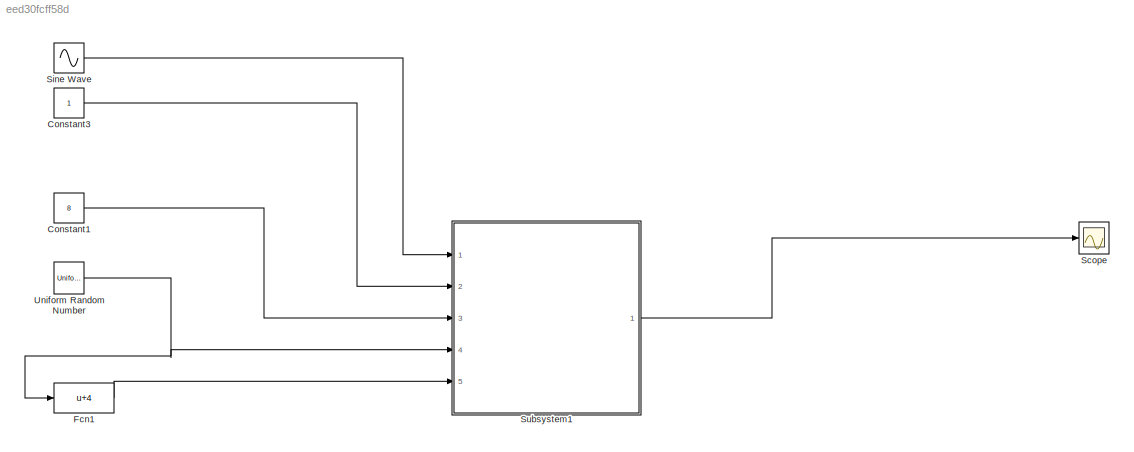
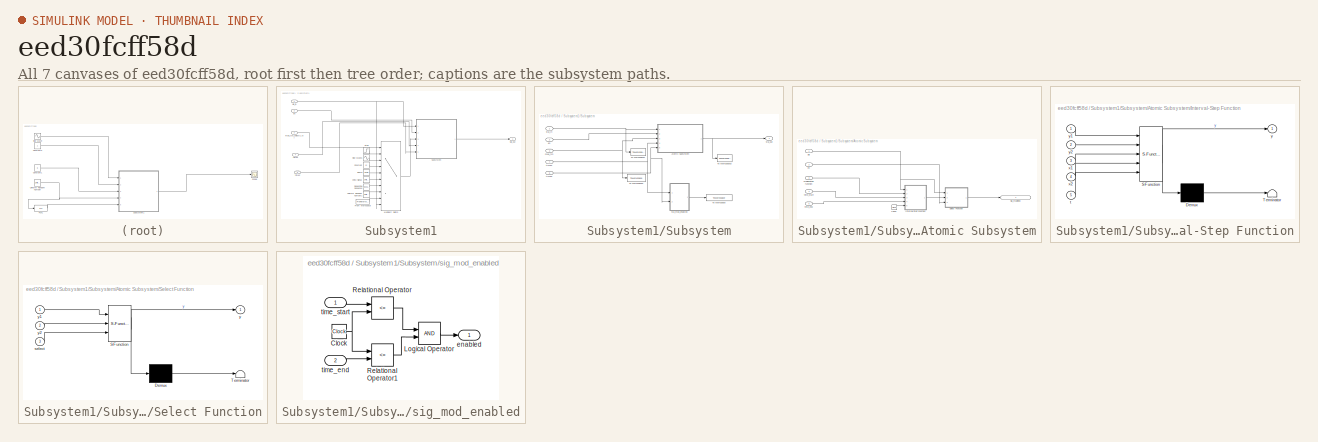
[diagram: thumbnail index - all 7 canvases of the model, root first then tree order]
MODEL slx_eed30fcff58d
KIND model
CONFIG AbsTol = auto
CONFIG EnableMultiTasking = off
CONFIG FixedStep = auto
CONFIG MaxStep = auto
CONFIG MinStep = auto
CONFIG RelTol = 1e-3
CONFIG SampleTimeConstraint = Unconstrained
CONFIG Solver = VariableStepAuto
CONFIG SolverName = VariableStepAuto
CONFIG StartTime = 0.0
CONFIG StopTime = 10.0
BLOCK [Constant] Constant1
  Value = 8
BLOCK [Constant] Constant3
BLOCK [Fcn] Fcn1
  Expr = u+4
BLOCK [Scope] Scope
  Floating = off
  NumInputPorts = 1
  Ports = [1]
  ScopeSpecificationString = Simulink.scopes.TimeScopeBlockCfg('CurrentConfiguration', extmgr.ConfigurationSet(extmgr.Configuration('Core','General UI',true),extmgr.Configuration('Core','Source UI',true),extmgr.Configuration('Sources','WiredSimulink',true),extmgr.Configuration('Visuals','Time Domain',true,'SerializedDisplays',{struct('MinYLimReal','-10.60191','MaxYLimReal','85.48204','YLabelReal','','MinYLimMag','0.00000','Ma...<+1391ch>
BLOCK [Sin] Sine Wave
  Ports = [0, 1]
  SampleTime = 0
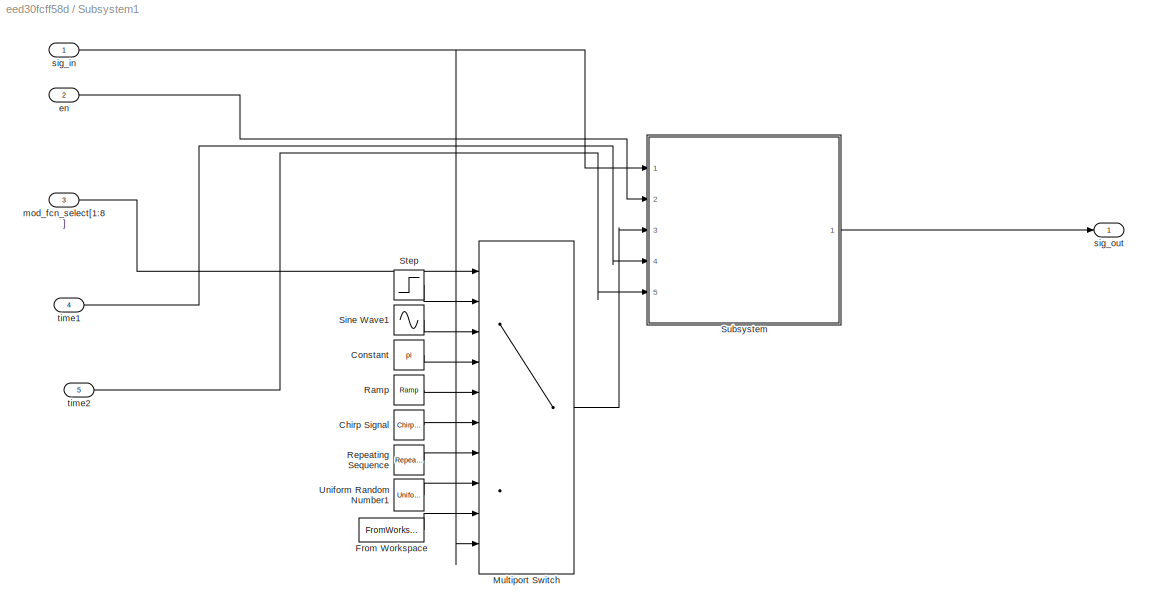
BLOCK [SubSystem] Subsystem1
  Ports = [5, 1]
  RequestExecContextInheritance = off
BLOCK [Reference] Subsystem1/Chirp Signal  REF=simulink/Sources/Chirp Signal
  Ports = [0, 1]
  SourceBlock = simulink/Sources/Chirp Signal
  SourceProductBaseCode = SL
  SourceProductName = Simulink
  SourceType = chirp
BLOCK [Constant] Subsystem1/Constant
  Value = pi
BLOCK [FromWorkspace] Subsystem1/From Workspace
  VariableName = simin
  ZeroCross = on
BLOCK [MultiPortSwitch] Subsystem1/Multiport Switch
  DataPortForDefault = Additional data port
  InputSameDT = off
  Inputs = 8
  Ports = [10, 1]
  SaturateOnIntegerOverflow = off
BLOCK [Reference] Subsystem1/Ramp  REF=simulink/Sources/Ramp
  Ports = [0, 1]
  SourceBlock = simulink/Sources/Ramp
  SourceProductBaseCode = SL
  SourceProductName = Simulink
  SourceType = Ramp
BLOCK [Reference] Subsystem1/Repeating Sequence  REF=simulink/Sources/Repeating
Sequence
  Ports = [0, 1]
  SourceBlock = simulink/Sources/Repeating\nSequence
  SourceProductBaseCode = SL
  SourceProductName = Simulink
  SourceType = Repeating table
BLOCK [Sin] Subsystem1/Sine Wave1
  Frequency = 1000
  Ports = [0, 1]
  SampleTime = 0
BLOCK [Step] Subsystem1/Step
  SampleTime = 0
  Time = 5
BLOCK [SubSystem] Subsystem1/Subsystem
  Ports = [5, 1]
  RequestExecContextInheritance = off
BLOCK [SubSystem] Subsystem1/Subsystem/Atomic Subsystem
  Ports = [5, 1]
  RequestExecContextInheritance = off
  TreatAsAtomicUnit = on
BLOCK [Clock] Subsystem1/Subsystem/Atomic Subsystem/Clock
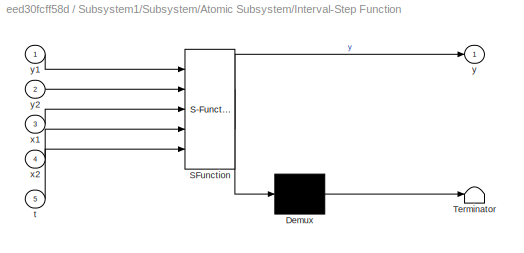
BLOCK [SubSystem] Subsystem1/Subsystem/Atomic Subsystem/Interval-Step Function
  ErrorFcn = Stateflow.Translate.translate
  PermitHierarchicalResolution = ExplicitOnly
  Ports = [5, 1]
  RequestExecContextInheritance = off
  SFBlockType = MATLAB Function
  TreatAsAtomicUnit = on
BLOCK [Demux] Subsystem1/Subsystem/Atomic Subsystem/Interval-Step Function/ Demux 
  Outputs = 1
  Ports = [1, 1]
BLOCK [S-Function] Subsystem1/Subsystem/Atomic Subsystem/Interval-Step Function/ SFunction 
  EnableBusSupport = on
  FunctionName = sf_sfun
  PortCounts = [5 2]
  Ports = [5, 2]
  SFcnIsStateOwnerBlock = off
  SFunctionDeploymentMode = off
  Tag = Stateflow S-Function sig_mod_block_4 1
BLOCK [Terminator] Subsystem1/Subsystem/Atomic Subsystem/Interval-Step Function/ Terminator 
BLOCK [Inport] Subsystem1/Subsystem/Atomic Subsystem/Interval-Step Function/t
  IconDisplay = Port number
  Port = 5
BLOCK [Inport] Subsystem1/Subsystem/Atomic Subsystem/Interval-Step Function/x1
  IconDisplay = Port number
  Port = 3
BLOCK [Inport] Subsystem1/Subsystem/Atomic Subsystem/Interval-Step Function/x2
  IconDisplay = Port number
  Port = 4
BLOCK [Outport] Subsystem1/Subsystem/Atomic Subsystem/Interval-Step Function/y
  IconDisplay = Port number
BLOCK [Inport] Subsystem1/Subsystem/Atomic Subsystem/Interval-Step Function/y1
  IconDisplay = Port number
BLOCK [Inport] Subsystem1/Subsystem/Atomic Subsystem/Interval-Step Function/y2
  IconDisplay = Port number
  Port = 2
BLOCK [SubSystem] Subsystem1/Subsystem/Atomic Subsystem/Select Function
  ErrorFcn = Stateflow.Translate.translate
  PermitHierarchicalResolution = ExplicitOnly
  Ports = [3, 1]
  RequestExecContextInheritance = off
  SFBlockType = MATLAB Function
  TreatAsAtomicUnit = on
BLOCK [Demux] Subsystem1/Subsystem/Atomic Subsystem/Select Function/ Demux 
  Outputs = 1
  Ports = [1, 1]
BLOCK [S-Function] Subsystem1/Subsystem/Atomic Subsystem/Select Function/ SFunction 
  EnableBusSupport = on
  FunctionName = sf_sfun
  PortCounts = [3 2]
  Ports = [3, 2]
  SFcnIsStateOwnerBlock = off
  SFunctionDeploymentMode = off
  Tag = Stateflow S-Function sig_mod_block_4 4
BLOCK [Terminator] Subsystem1/Subsystem/Atomic Subsystem/Select Function/ Terminator 
BLOCK [Inport] Subsystem1/Subsystem/Atomic Subsystem/Select Function/select
  IconDisplay = Port number
  Port = 3
BLOCK [Outport] Subsystem1/Subsystem/Atomic Subsystem/Select Function/y
  IconDisplay = Port number
BLOCK [Inport] Subsystem1/Subsystem/Atomic Subsystem/Select Function/y1
  IconDisplay = Port number
BLOCK [Inport] Subsystem1/Subsystem/Atomic Subsystem/Select Function/y2
  IconDisplay = Port number
  Port = 2
BLOCK [Inport] Subsystem1/Subsystem/Atomic Subsystem/en
  IconDisplay = Port number
  Port = 2
BLOCK [Inport] Subsystem1/Subsystem/Atomic Subsystem/modification function
  IconDisplay = Port number
  Port = 3
BLOCK [Inport] Subsystem1/Subsystem/Atomic Subsystem/sig
  IconDisplay = Port number
BLOCK [Outport] Subsystem1/Subsystem/Atomic Subsystem/sig_modified
  IconDisplay = Port number
BLOCK [Inport] Subsystem1/Subsystem/Atomic Subsystem/time_end
  IconDisplay = Port number
  Port = 5
BLOCK [Inport] Subsystem1/Subsystem/Atomic Subsystem/time_start
  IconDisplay = Port number
  Port = 4
BLOCK [ToWorkspace] Subsystem1/Subsystem/To Workspace
  FixptAsFi = on
  MaxDataPoints = inf
  Ports = [1]
  SampleTime = -1
  SaveFormat = Timeseries
  VariableName = sig_mod_enabled
BLOCK [ToWorkspace] Subsystem1/Subsystem/To Workspace1
  FixptAsFi = on
  MaxDataPoints = inf
  Ports = [1]
  SampleTime = -1
  SaveFormat = Timeseries
  VariableName = sig_in
BLOCK [ToWorkspace] Subsystem1/Subsystem/To Workspace2
  FixptAsFi = on
  MaxDataPoints = inf
  Ports = [1]
  SampleTime = -1
  SaveFormat = Timeseries
  VariableName = mod_fcn
BLOCK [ToWorkspace] Subsystem1/Subsystem/To Workspace3
  FixptAsFi = on
  MaxDataPoints = inf
  Ports = [1]
  SampleTime = -1
  SaveFormat = Timeseries
  VariableName = sig_out
BLOCK [Inport] Subsystem1/Subsystem/en
  IconDisplay = Port number
  Port = 2
BLOCK [Inport] Subsystem1/Subsystem/mod_fcn
  IconDisplay = Port number
  Port = 3
BLOCK [Inport] Subsystem1/Subsystem/sig_in
  IconDisplay = Port number
BLOCK [SubSystem] Subsystem1/Subsystem/sig_mod_enabled
  Ports = [2, 1]
  RequestExecContextInheritance = off
BLOCK [Clock] Subsystem1/Subsystem/sig_mod_enabled/Clock
BLOCK [Logic] Subsystem1/Subsystem/sig_mod_enabled/Logical Operator
  AllPortsSameDT = off
  OutDataTypeStr = boolean
  Ports = [2, 1]
BLOCK [RelationalOperator] Subsystem1/Subsystem/sig_mod_enabled/Relational Operator
  InputSameDT = off
  Operator = <=
  OutDataTypeStr = boolean
  Ports = [2, 1]
  RndMeth = Simplest
BLOCK [RelationalOperator] Subsystem1/Subsystem/sig_mod_enabled/Relational Operator1
  InputSameDT = off
  Operator = <=
  OutDataTypeStr = boolean
  Ports = [2, 1]
  RndMeth = Simplest
BLOCK [Outport] Subsystem1/Subsystem/sig_mod_enabled/enabled
  IconDisplay = Port number
BLOCK [Inport] Subsystem1/Subsystem/sig_mod_enabled/time_end
  IconDisplay = Port number
  Port = 2
BLOCK [Inport] Subsystem1/Subsystem/sig_mod_enabled/time_start
  IconDisplay = Port number
BLOCK [Outport] Subsystem1/Subsystem/sig_out
  IconDisplay = Port number
BLOCK [Inport] Subsystem1/Subsystem/time1
  IconDisplay = Port number
  Port = 4
BLOCK [Inport] Subsystem1/Subsystem/time2
  IconDisplay = Port number
  Port = 5
BLOCK [UniformRandomNumber] Subsystem1/Uniform Random Number1
  Maximum = 10
  Minimum = -10
  SampleTime = 0.1
  Seed = randi(intmax)
BLOCK [Inport] Subsystem1/en
  IconDisplay = Port number
  Port = 2
BLOCK [Inport] Subsystem1/mod_fcn_select[1:8]
  IconDisplay = Port number
  Port = 3
BLOCK [Inport] Subsystem1/sig_in
  IconDisplay = Port number
BLOCK [Outport] Subsystem1/sig_out
  IconDisplay = Port number
BLOCK [Inport] Subsystem1/time1
  IconDisplay = Port number
  Port = 4
BLOCK [Inport] Subsystem1/time2
  IconDisplay = Port number
  Port = 5
BLOCK [UniformRandomNumber] Uniform Random Number
  Maximum = 6
  Minimum = 0
  SampleTime = 0.1
  Seed = randi(intmax)
LINE Constant1:1 -> Subsystem1:3
LINE Constant3:1 -> Subsystem1:2
LINE Fcn1:1 -> Subsystem1:5
LINE Sine Wave:1 -> Subsystem1:1
LINE Subsystem1/Chirp Signal:1 -> Subsystem1/Multiport Switch:6
LINE Subsystem1/Constant:1 -> Subsystem1/Multiport Switch:4
LINE Subsystem1/From Workspace:1 -> Subsystem1/Multiport Switch:9
LINE Subsystem1/Multiport Switch:1 -> Subsystem1/Subsystem:3
LINE Subsystem1/Ramp:1 -> Subsystem1/Multiport Switch:5
LINE Subsystem1/Repeating Sequence:1 -> Subsystem1/Multiport Switch:7
LINE Subsystem1/Sine Wave1:1 -> Subsystem1/Multiport Switch:3
LINE Subsystem1/Step:1 -> Subsystem1/Multiport Switch:2
LINE Subsystem1/Subsystem/Atomic Subsystem/Clock:1 -> Subsystem1/Subsystem/Atomic Subsystem/Interval-Step Function:5
LINE Subsystem1/Subsystem/Atomic Subsystem/Interval-Step Function:1 -> Subsystem1/Subsystem/Atomic Subsystem/Select Function:2
LINE Subsystem1/Subsystem/Atomic Subsystem/Select Function:1 -> Subsystem1/Subsystem/Atomic Subsystem/sig_modified:1
LINE Subsystem1/Subsystem/Atomic Subsystem/en:1 -> Subsystem1/Subsystem/Atomic Subsystem/Select Function:3
LINE Subsystem1/Subsystem/Atomic Subsystem/modification function:1 -> Subsystem1/Subsystem/Atomic Subsystem/Interval-Step Function:2
NET Subsystem1/Subsystem/Atomic Subsystem/sig:1 -> Subsystem1/Subsystem/Atomic Subsystem/Interval-Step Function:1, Subsystem1/Subsystem/Atomic Subsystem/Select Function:1
LINE Subsystem1/Subsystem/Atomic Subsystem/time_end:1 -> Subsystem1/Subsystem/Atomic Subsystem/Interval-Step Function:4
LINE Subsystem1/Subsystem/Atomic Subsystem/time_start:1 -> Subsystem1/Subsystem/Atomic Subsystem/Interval-Step Function:3
NET Subsystem1/Subsystem/Atomic Subsystem:1 -> Subsystem1/Subsystem/To Workspace3:1, Subsystem1/Subsystem/sig_out:1
LINE Subsystem1/Subsystem/en:1 -> Subsystem1/Subsystem/Atomic Subsystem:2
NET Subsystem1/Subsystem/mod_fcn:1 -> Subsystem1/Subsystem/Atomic Subsystem:3, Subsystem1/Subsystem/To Workspace2:1
NET Subsystem1/Subsystem/sig_in:1 -> Subsystem1/Subsystem/Atomic Subsystem:1, Subsystem1/Subsystem/To Workspace1:1
NET Subsystem1/Subsystem/sig_mod_enabled/Clock:1 -> Subsystem1/Subsystem/sig_mod_enabled/Relational Operator1:1, Subsystem1/Subsystem/sig_mod_enabled/Relational Operator:2
LINE Subsystem1/Subsystem/sig_mod_enabled/Logical Operator:1 -> Subsystem1/Subsystem/sig_mod_enabled/enabled:1
LINE Subsystem1/Subsystem/sig_mod_enabled/Relational Operator1:1 -> Subsystem1/Subsystem/sig_mod_enabled/Logical Operator:2
LINE Subsystem1/Subsystem/sig_mod_enabled/Relational Operator:1 -> Subsystem1/Subsystem/sig_mod_enabled/Logical Operator:1
LINE Subsystem1/Subsystem/sig_mod_enabled/time_end:1 -> Subsystem1/Subsystem/sig_mod_enabled/Relational Operator1:2
LINE Subsystem1/Subsystem/sig_mod_enabled/time_start:1 -> Subsystem1/Subsystem/sig_mod_enabled/Relational Operator:1
LINE Subsystem1/Subsystem/sig_mod_enabled:1 -> Subsystem1/Subsystem/To Workspace:1
NET Subsystem1/Subsystem/time1:1 -> Subsystem1/Subsystem/Atomic Subsystem:4, Subsystem1/Subsystem/sig_mod_enabled:1
NET Subsystem1/Subsystem/time2:1 -> Subsystem1/Subsystem/Atomic Subsystem:5, Subsystem1/Subsystem/sig_mod_enabled:2
LINE Subsystem1/Subsystem:1 -> Subsystem1/sig_out:1
LINE Subsystem1/Uniform Random Number1:1 -> Subsystem1/Multiport Switch:8
LINE Subsystem1/en:1 -> Subsystem1/Subsystem:2
LINE Subsystem1/mod_fcn_select[1:8]:1 -> Subsystem1/Multiport Switch:1
NET Subsystem1/sig_in:1 -> Subsystem1/Multiport Switch:10, Subsystem1/Subsystem:1
LINE Subsystem1/time1:1 -> Subsystem1/Subsystem:4
LINE Subsystem1/time2:1 -> Subsystem1/Subsystem:5
LINE Subsystem1:1 -> Scope:1
NET Uniform Random Number:1 -> Fcn1:1, Subsystem1:4
note: NET lines group one-source signal fan-out (src -> all destinations, sorted); 1:1 wires keep LINE
CHART Subsystem1/Subsystem/Atomic Subsystem/Interval-Step Function states=1 transitions=1
  STATE_LABEL 'eML_blk_kernel()'
  STATE_LABEL 'SCRIPT:\nfunction y = fcn(y1,y2,x1,x2,t)\n\nif (x1<=t)&&(t<x2)\n    y=y2;\nelse\n    y=y1;\nend\n'
CHART Subsystem1/Subsystem/Atomic Subsystem/Select Function states=1 transitions=1
  STATE_LABEL 'eML_blk_kernel()'
  STATE_LABEL 'SCRIPT:\nfunction y = fcn(y1,y2,select)\n\nif select>=1\n    y=y2;\nelse\n    y=y1;\nend'
